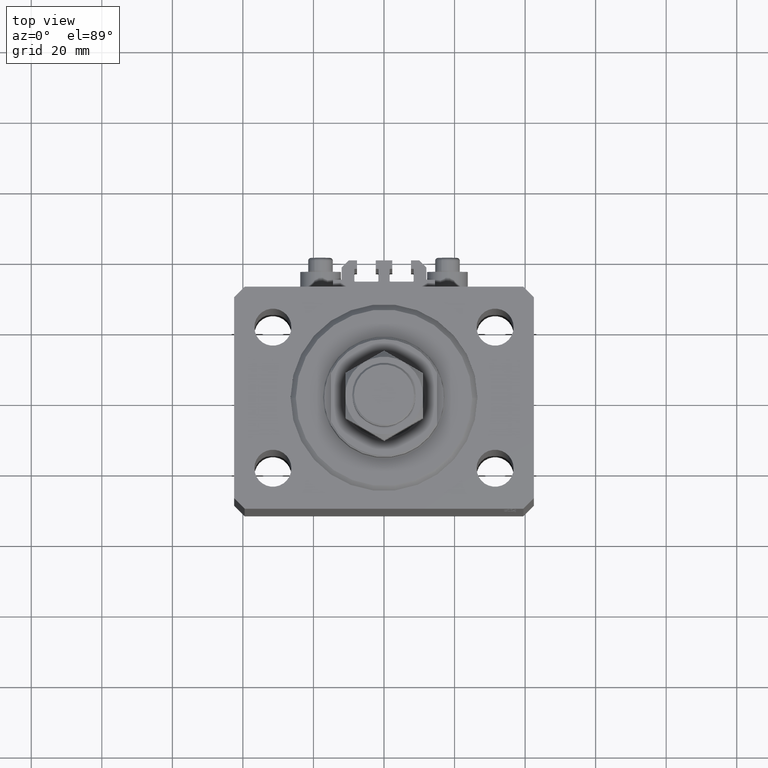
[diagram: clean part render]
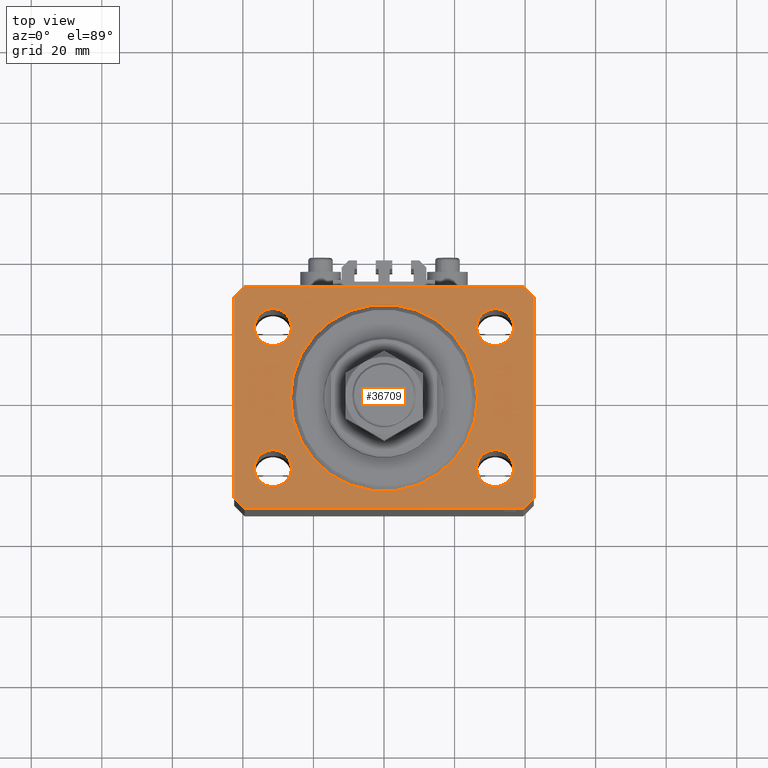
[diagram: same view with one face highlighted and labeled with its STEP entity id]
A machine part, top view. The second image highlights one B-rep face of the part: STEP entity #36709.
In plain terms, the highlighted planar face has unit normal (0, 0, 1).
Its self-contained STEP definition (entity closure, byte-faithful):
#16 = VECTOR ( 'NONE', #11357, 1000.000000000000000 ) ;
#89 = CARTESIAN_POINT ( 'NONE',  ( -36.74999999999999289, -20.00000000000000355, 0.000000000000000000 ) ) ;
#576 = CARTESIAN_POINT ( 'NONE',  ( 39.50000000000056843, 31.50000000000000000, 0.000000000000000000 ) ) ;
#638 = AXIS2_PLACEMENT_3D ( 'NONE', #15091, #34418, #37667 ) ;
#881 = DIRECTION ( 'NONE',  ( 0.000000000000000000, 0.000000000000000000, 1.000000000000000000 ) ) ;
#898 = EDGE_LOOP ( 'NONE', ( #33011, #34625 ) ) ;
#1745 = EDGE_LOOP ( 'NONE', ( #18671, #13514, #24874, #2105, #26227, #11238, #31632, #32068 ) ) ;
#1994 = EDGE_CURVE ( 'NONE', #44939, #36259, #16507, .T. ) ;
#2105 = ORIENTED_EDGE ( 'NONE', *, *, #41043, .T. ) ;
#3228 = VERTEX_POINT ( 'NONE', #28053 ) ;
#3325 = DIRECTION ( 'NONE',  ( 0.7071067811865483499, 0.7071067811865466846, 0.000000000000000000 ) ) ;
#3346 = FACE_BOUND ( 'NONE', #5435, .T. ) ;
#3900 = CIRCLE ( 'NONE', #42652, 5.249999999999997335 ) ;
#3907 = CARTESIAN_POINT ( 'NONE',  ( -26.50000000000000355, 3.245314017740485765E-15, 0.000000000000000000 ) ) ;
#3915 = CARTESIAN_POINT ( 'NONE',  ( -42.50000000000000000, -28.50000000000000000, 0.000000000000000000 ) ) ;
#4025 = ORIENTED_EDGE ( 'NONE', *, *, #8709, .F. ) ;
#4109 = CIRCLE ( 'NONE', #13621, 26.50000000000000355 ) ;
#4164 = LINE ( 'NONE', #19281, #33242 ) ;
#5115 = CARTESIAN_POINT ( 'NONE',  ( 26.24999999999999645, -20.00000000000000355, 0.000000000000000000 ) ) ;
#5226 = VERTEX_POINT ( 'NONE', #576 ) ;
#5289 = CARTESIAN_POINT ( 'NONE',  ( -39.50000000000000711, 31.50000000000000000, 0.000000000000000000 ) ) ;
#5435 = EDGE_LOOP ( 'NONE', ( #25495, #4025 ) ) ;
#5465 = CARTESIAN_POINT ( 'NONE',  ( 0.000000000000000000, 0.000000000000000000, 0.000000000000000000 ) ) ;
#5587 = DIRECTION ( 'NONE',  ( 1.000000000000000000, 0.000000000000000000, 0.000000000000000000 ) ) ;
#5948 = EDGE_CURVE ( 'NONE', #22680, #43140, #34739, .T. ) ;
#6496 = CARTESIAN_POINT ( 'NONE',  ( 31.49999999999999289, -20.00000000000000355, 0.000000000000000000 ) ) ;
#7075 = LINE ( 'NONE', #17226, #30866 ) ;
#7749 = CARTESIAN_POINT ( 'NONE',  ( 42.50000000000051870, 28.49999999999995381, 0.000000000000000000 ) ) ;
#7762 = VERTEX_POINT ( 'NONE', #18111 ) ;
#7786 = EDGE_CURVE ( 'NONE', #23958, #13895, #45836, .T. ) ;
#8709 = EDGE_CURVE ( 'NONE', #21989, #32412, #34813, .T. ) ;
#8991 = DIRECTION ( 'NONE',  ( 0.000000000000000000, 0.000000000000000000, 1.000000000000000000 ) ) ;
#9492 = AXIS2_PLACEMENT_3D ( 'NONE', #9725, #8991, #39200 ) ;
#9725 = CARTESIAN_POINT ( 'NONE',  ( -31.49999999999999289, -20.00000000000000355, 0.000000000000000000 ) ) ;
#9750 = AXIS2_PLACEMENT_3D ( 'NONE', #10308, #44741, #29654 ) ;
#10191 = CARTESIAN_POINT ( 'NONE',  ( 31.49999999999999289, -20.00000000000000355, 0.000000000000000000 ) ) ;
#10307 = VERTEX_POINT ( 'NONE', #12256 ) ;
#10308 = CARTESIAN_POINT ( 'NONE',  ( -31.50000000000000000, 19.99999999999999645, 0.000000000000000000 ) ) ;
#10373 = ORIENTED_EDGE ( 'NONE', *, *, #7786, .F. ) ;
#10446 = DIRECTION ( 'NONE',  ( 1.000000000000000000, 0.000000000000000000, 0.000000000000000000 ) ) ;
#10753 = EDGE_CURVE ( 'NONE', #13895, #23958, #26956, .T. ) ;
#10798 = FACE_BOUND ( 'NONE', #898, .T. ) ;
#11238 = ORIENTED_EDGE ( 'NONE', *, *, #22971, .T. ) ;
#11357 = DIRECTION ( 'NONE',  ( 0.000000000000000000, -1.000000000000000000, 0.000000000000000000 ) ) ;
#12255 = DIRECTION ( 'NONE',  ( 0.000000000000000000, 0.000000000000000000, 1.000000000000000000 ) ) ;
#12256 = CARTESIAN_POINT ( 'NONE',  ( 26.50000000000000355, 0.000000000000000000, 0.000000000000000000 ) ) ;
#12273 = CARTESIAN_POINT ( 'NONE',  ( 42.50000000000000711, -28.50000000000000355, 0.000000000000000000 ) ) ;
#13032 = CARTESIAN_POINT ( 'NONE',  ( 31.50000000000000000, 19.99999999999999289, 0.000000000000000000 ) ) ;
#13514 = ORIENTED_EDGE ( 'NONE', *, *, #32430, .T. ) ;
#13621 = AXIS2_PLACEMENT_3D ( 'NONE', #18906, #15655, #41685 ) ;
#13895 = VERTEX_POINT ( 'NONE', #5115 ) ;
#13920 = DIRECTION ( 'NONE',  ( 1.000000000000000000, 0.000000000000000000, 0.000000000000000000 ) ) ;
#14012 = EDGE_CURVE ( 'NONE', #43760, #10307, #4109, .T. ) ;
#14318 = CARTESIAN_POINT ( 'NONE',  ( -42.50000000000000000, 28.50000000000000000, 0.000000000000000000 ) ) ;
#14512 = DIRECTION ( 'NONE',  ( -1.000000000000000000, 0.000000000000000000, 0.000000000000000000 ) ) ;
#14556 = ORIENTED_EDGE ( 'NONE', *, *, #30597, .F. ) ;
#15091 = CARTESIAN_POINT ( 'NONE',  ( 0.000000000000000000, 0.000000000000000000, 0.000000000000000000 ) ) ;
#15195 = CARTESIAN_POINT ( 'NONE',  ( 31.50000000000000000, 19.99999999999999289, 0.000000000000000000 ) ) ;
#15321 = LINE ( 'NONE', #3915, #19776 ) ;
#15490 = VERTEX_POINT ( 'NONE', #12273 ) ;
#15655 = DIRECTION ( 'NONE',  ( 0.000000000000000000, 0.000000000000000000, 1.000000000000000000 ) ) ;
#16000 = DIRECTION ( 'NONE',  ( 1.000000000000000000, 0.000000000000000000, 0.000000000000000000 ) ) ;
#16243 = EDGE_CURVE ( 'NONE', #43140, #22680, #39023, .T. ) ;
#16507 = LINE ( 'NONE', #30681, #18681 ) ;
#16751 = VERTEX_POINT ( 'NONE', #29269 ) ;
#17226 = CARTESIAN_POINT ( 'NONE',  ( 39.50000000000056843, 31.50000000000000000, 0.000000000000000000 ) ) ;
#18111 = CARTESIAN_POINT ( 'NONE',  ( 36.75000000000000000, 19.99999999999999289, 0.000000000000000000 ) ) ;
#18481 = FACE_BOUND ( 'NONE', #35125, .T. ) ;
#18671 = ORIENTED_EDGE ( 'NONE', *, *, #37392, .T. ) ;
#18681 = VECTOR ( 'NONE', #19286, 1000.000000000000000 ) ;
#18906 = CARTESIAN_POINT ( 'NONE',  ( 0.000000000000000000, 0.000000000000000000, 0.000000000000000000 ) ) ;
#19041 = AXIS2_PLACEMENT_3D ( 'NONE', #6496, #43408, #13920 ) ;
#19281 = CARTESIAN_POINT ( 'NONE',  ( 42.50000000000000711, -28.50000000000000355, 0.000000000000000000 ) ) ;
#19286 = DIRECTION ( 'NONE',  ( 1.000000000000000000, 0.000000000000000000, 0.000000000000000000 ) ) ;
#19586 = EDGE_LOOP ( 'NONE', ( #45303, #14556 ) ) ;
#19776 = VECTOR ( 'NONE', #29966, 1000.000000000000000 ) ;
#20340 = PLANE ( 'NONE',  #45096 ) ;
#20840 = DIRECTION ( 'NONE',  ( 0.000000000000000000, 0.000000000000000000, 1.000000000000000000 ) ) ;
#21295 = CARTESIAN_POINT ( 'NONE',  ( -42.50000000000000000, -28.50000000000000000, 0.000000000000000000 ) ) ;
#21454 = CIRCLE ( 'NONE', #30180, 5.249999999999997335 ) ;
#21989 = VERTEX_POINT ( 'NONE', #89 ) ;
#22016 = CIRCLE ( 'NONE', #638, 26.50000000000000355 ) ;
#22248 = VERTEX_POINT ( 'NONE', #21295 ) ;
#22680 = VERTEX_POINT ( 'NONE', #48733 ) ;
#22971 = EDGE_CURVE ( 'NONE', #36259, #15490, #37300, .T. ) ;
#23122 = DIRECTION ( 'NONE',  ( 1.000000000000000000, 0.000000000000000000, 0.000000000000000000 ) ) ;
#23560 = LINE ( 'NONE', #27285, #30065 ) ;
#23895 = DIRECTION ( 'NONE',  ( 1.000000000000000000, 0.000000000000000000, 0.000000000000000000 ) ) ;
#23958 = VERTEX_POINT ( 'NONE', #32289 ) ;
#24691 = ORIENTED_EDGE ( 'NONE', *, *, #10753, .F. ) ;
#24874 = ORIENTED_EDGE ( 'NONE', *, *, #33640, .T. ) ;
#25495 = ORIENTED_EDGE ( 'NONE', *, *, #38217, .F. ) ;
#26227 = ORIENTED_EDGE ( 'NONE', *, *, #1994, .T. ) ;
#26956 = CIRCLE ( 'NONE', #19041, 5.249999999999997335 ) ;
#27285 = CARTESIAN_POINT ( 'NONE',  ( -39.50000000000000711, 31.50000000000000000, 0.000000000000000000 ) ) ;
#27591 = ORIENTED_EDGE ( 'NONE', *, *, #16243, .F. ) ;
#27745 = AXIS2_PLACEMENT_3D ( 'NONE', #42232, #12255, #23895 ) ;
#28053 = CARTESIAN_POINT ( 'NONE',  ( 26.25000000000000355, 19.99999999999999289, 0.000000000000000000 ) ) ;
#28356 = EDGE_CURVE ( 'NONE', #10307, #43760, #22016, .T. ) ;
#29269 = CARTESIAN_POINT ( 'NONE',  ( 42.50000000000051870, 28.49999999999995381, 0.000000000000000000 ) ) ;
#29654 = DIRECTION ( 'NONE',  ( 1.000000000000000000, 0.000000000000000000, 0.000000000000000000 ) ) ;
#29710 = LINE ( 'NONE', #14318, #16 ) ;
#29881 = FACE_BOUND ( 'NONE', #19586, .T. ) ;
#29966 = DIRECTION ( 'NONE',  ( 0.7071067811865471286, -0.7071067811865479058, 0.000000000000000000 ) ) ;
#30063 = AXIS2_PLACEMENT_3D ( 'NONE', #10191, #44380, #10446 ) ;
#30065 = VECTOR ( 'NONE', #46355, 1000.000000000000000 ) ;
#30180 = AXIS2_PLACEMENT_3D ( 'NONE', #15195, #30559, #23122 ) ;
#30559 = DIRECTION ( 'NONE',  ( 0.000000000000000000, 0.000000000000000000, 1.000000000000000000 ) ) ;
#30597 = EDGE_CURVE ( 'NONE', #3228, #7762, #3900, .T. ) ;
#30681 = CARTESIAN_POINT ( 'NONE',  ( -39.50000000000000711, -31.50000000000000000, 0.000000000000000000 ) ) ;
#30866 = VECTOR ( 'NONE', #14512, 1000.000000000000000 ) ;
#31618 = DIRECTION ( 'NONE',  ( 0.000000000000000000, 0.000000000000000000, 1.000000000000000000 ) ) ;
#31632 = ORIENTED_EDGE ( 'NONE', *, *, #41274, .T. ) ;
#31683 = VERTEX_POINT ( 'NONE', #5289 ) ;
#31808 = EDGE_CURVE ( 'NONE', #16751, #5226, #41676, .T. ) ;
#32068 = ORIENTED_EDGE ( 'NONE', *, *, #31808, .T. ) ;
#32164 = CARTESIAN_POINT ( 'NONE',  ( -26.25000000000000000, 19.99999999999999645, 0.000000000000000000 ) ) ;
#32289 = CARTESIAN_POINT ( 'NONE',  ( 36.74999999999999289, -20.00000000000000355, 0.000000000000000000 ) ) ;
#32412 = VERTEX_POINT ( 'NONE', #45868 ) ;
#32430 = EDGE_CURVE ( 'NONE', #31683, #44855, #23560, .T. ) ;
#33011 = ORIENTED_EDGE ( 'NONE', *, *, #28356, .F. ) ;
#33208 = VECTOR ( 'NONE', #45640, 1000.000000000000114 ) ;
#33242 = VECTOR ( 'NONE', #34402, 1000.000000000000000 ) ;
#33600 = FACE_BOUND ( 'NONE', #46545, .T. ) ;
#33640 = EDGE_CURVE ( 'NONE', #44855, #22248, #29710, .T. ) ;
#34402 = DIRECTION ( 'NONE',  ( 8.886653596232072440E-15, 1.000000000000000000, 0.000000000000000000 ) ) ;
#34418 = DIRECTION ( 'NONE',  ( 0.000000000000000000, 0.000000000000000000, 1.000000000000000000 ) ) ;
#34625 = ORIENTED_EDGE ( 'NONE', *, *, #14012, .F. ) ;
#34739 = CIRCLE ( 'NONE', #35525, 5.250000000000000888 ) ;
#34813 = CIRCLE ( 'NONE', #9492, 5.250000000000000888 ) ;
#34843 = CARTESIAN_POINT ( 'NONE',  ( -31.50000000000000000, 19.99999999999999645, 0.000000000000000000 ) ) ;
#35101 = ORIENTED_EDGE ( 'NONE', *, *, #5948, .F. ) ;
#35125 = EDGE_LOOP ( 'NONE', ( #10373, #24691 ) ) ;
#35525 = AXIS2_PLACEMENT_3D ( 'NONE', #34843, #881, #16000 ) ;
#36259 = VERTEX_POINT ( 'NONE', #42566 ) ;
#36709 = ADVANCED_FACE ( 'NONE', ( #10798, #3346, #18481, #29881, #33600, #39174 ), #20340, .T. ) ;
#37300 = LINE ( 'NONE', #40007, #48446 ) ;
#37392 = EDGE_CURVE ( 'NONE', #5226, #31683, #7075, .T. ) ;
#37667 = DIRECTION ( 'NONE',  ( 1.000000000000000000, 0.000000000000000000, 0.000000000000000000 ) ) ;
#38217 = EDGE_CURVE ( 'NONE', #32412, #21989, #46730, .T. ) ;
#39023 = CIRCLE ( 'NONE', #9750, 5.250000000000000888 ) ;
#39174 = FACE_OUTER_BOUND ( 'NONE', #1745, .T. ) ;
#39200 = DIRECTION ( 'NONE',  ( 1.000000000000000000, 0.000000000000000000, 0.000000000000000000 ) ) ;
#39993 = CARTESIAN_POINT ( 'NONE',  ( -42.50000000000000000, 28.50000000000000000, 0.000000000000000000 ) ) ;
#40007 = CARTESIAN_POINT ( 'NONE',  ( 39.50000000000000711, -31.50000000000000000, 0.000000000000000000 ) ) ;
#41043 = EDGE_CURVE ( 'NONE', #22248, #44939, #15321, .T. ) ;
#41274 = EDGE_CURVE ( 'NONE', #15490, #16751, #4164, .T. ) ;
#41676 = LINE ( 'NONE', #7749, #33208 ) ;
#41685 = DIRECTION ( 'NONE',  ( 1.000000000000000000, 0.000000000000000000, 0.000000000000000000 ) ) ;
#42232 = CARTESIAN_POINT ( 'NONE',  ( -31.49999999999999289, -20.00000000000000355, 0.000000000000000000 ) ) ;
#42566 = CARTESIAN_POINT ( 'NONE',  ( 39.50000000000000711, -31.50000000000000000, 0.000000000000000000 ) ) ;
#42652 = AXIS2_PLACEMENT_3D ( 'NONE', #13032, #31618, #5587 ) ;
#43140 = VERTEX_POINT ( 'NONE', #32164 ) ;
#43374 = EDGE_CURVE ( 'NONE', #7762, #3228, #21454, .T. ) ;
#43408 = DIRECTION ( 'NONE',  ( 0.000000000000000000, 0.000000000000000000, 1.000000000000000000 ) ) ;
#43628 = DIRECTION ( 'NONE',  ( 1.000000000000000000, 0.000000000000000000, -0.000000000000000000 ) ) ;
#43760 = VERTEX_POINT ( 'NONE', #3907 ) ;
#43961 = CARTESIAN_POINT ( 'NONE',  ( -39.50000000000000711, -31.50000000000000000, 0.000000000000000000 ) ) ;
#44380 = DIRECTION ( 'NONE',  ( 0.000000000000000000, 0.000000000000000000, 1.000000000000000000 ) ) ;
#44741 = DIRECTION ( 'NONE',  ( 0.000000000000000000, 0.000000000000000000, 1.000000000000000000 ) ) ;
#44855 = VERTEX_POINT ( 'NONE', #39993 ) ;
#44939 = VERTEX_POINT ( 'NONE', #43961 ) ;
#45096 = AXIS2_PLACEMENT_3D ( 'NONE', #5465, #20840, #43628 ) ;
#45303 = ORIENTED_EDGE ( 'NONE', *, *, #43374, .F. ) ;
#45640 = DIRECTION ( 'NONE',  ( -0.7071067811865356934, 0.7071067811865594521, 0.000000000000000000 ) ) ;
#45836 = CIRCLE ( 'NONE', #30063, 5.249999999999997335 ) ;
#45868 = CARTESIAN_POINT ( 'NONE',  ( -26.24999999999999289, -20.00000000000000355, 0.000000000000000000 ) ) ;
#46355 = DIRECTION ( 'NONE',  ( -0.7071067811865471286, -0.7071067811865479058, 0.000000000000000000 ) ) ;
#46545 = EDGE_LOOP ( 'NONE', ( #27591, #35101 ) ) ;
#46730 = CIRCLE ( 'NONE', #27745, 5.250000000000000888 ) ;
#48446 = VECTOR ( 'NONE', #3325, 1000.000000000000000 ) ;
#48733 = CARTESIAN_POINT ( 'NONE',  ( -36.75000000000000000, 19.99999999999999645, 0.000000000000000000 ) ) ;